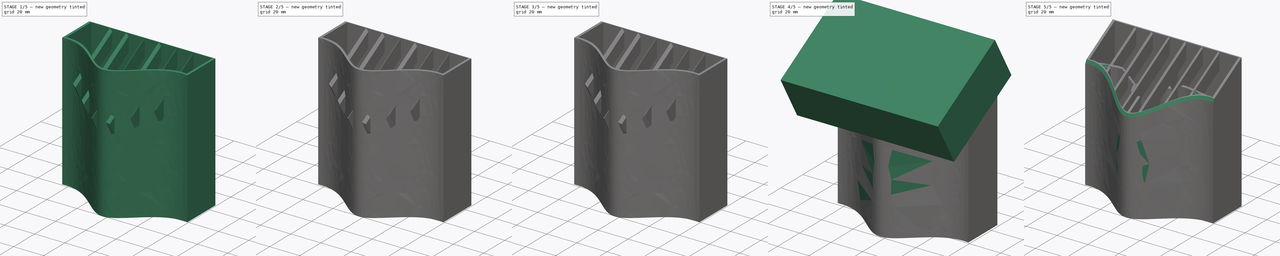
[diagram: build sequence overview — one tinted view per stage of 5, left to right]
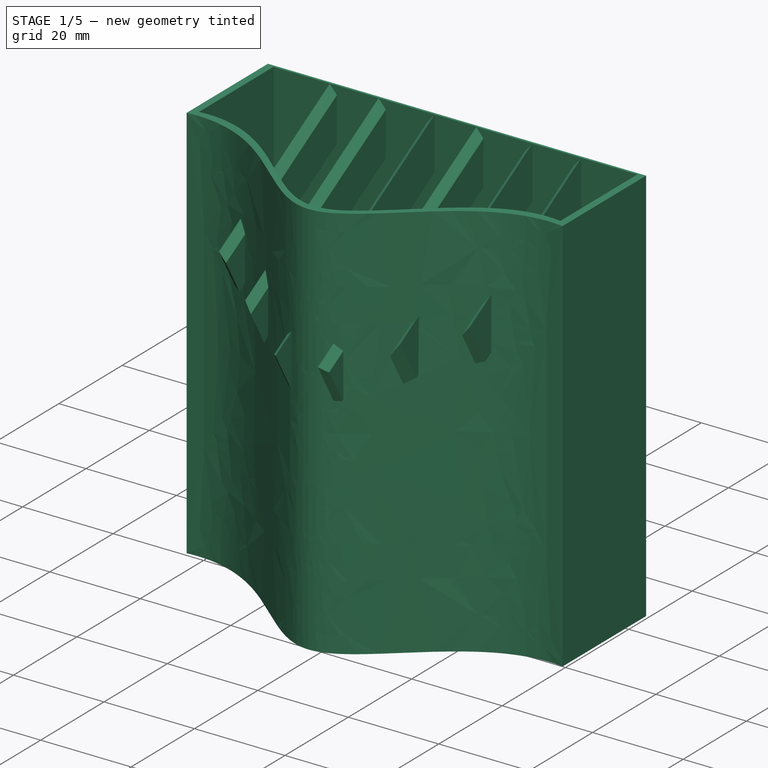
[diagram: stage 1 of 5 — iso view after this stage's code; geometry added in this stage tinted green]
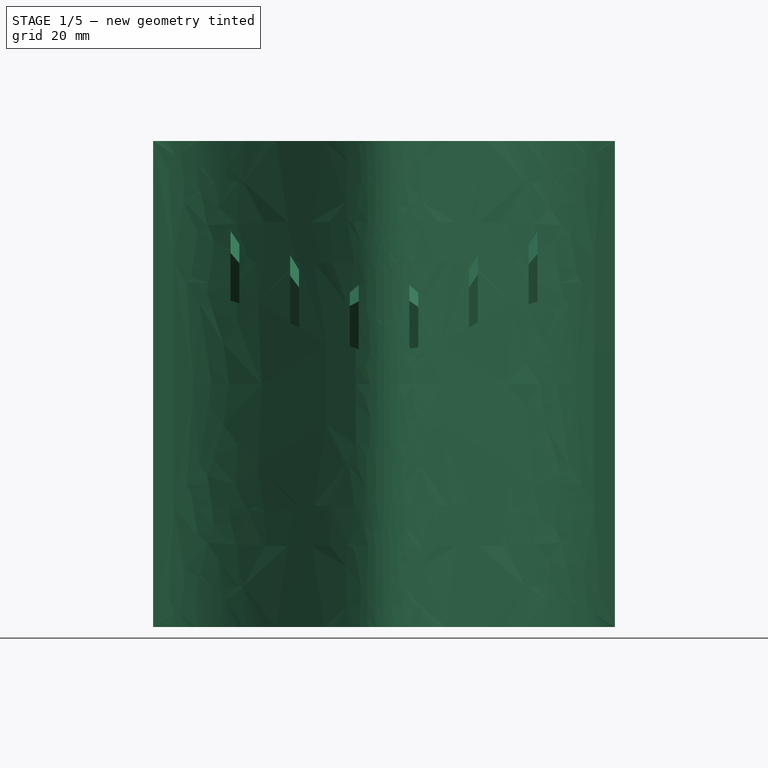
[diagram: stage 1 of 5 — front view after this stage's code; geometry added in this stage tinted green]
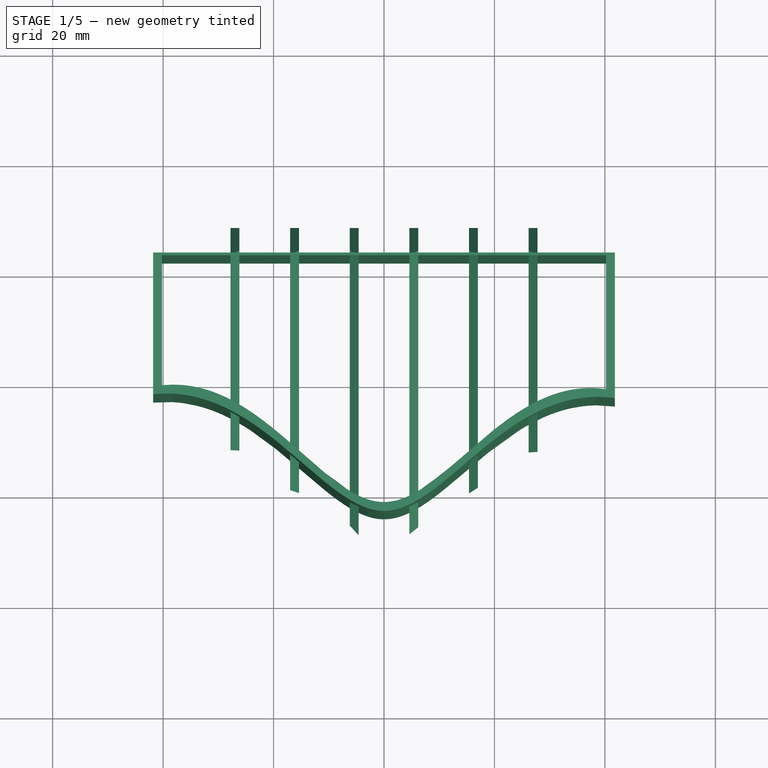
[diagram: stage 1 of 5 — top view after this stage's code; geometry added in this stage tinted green]
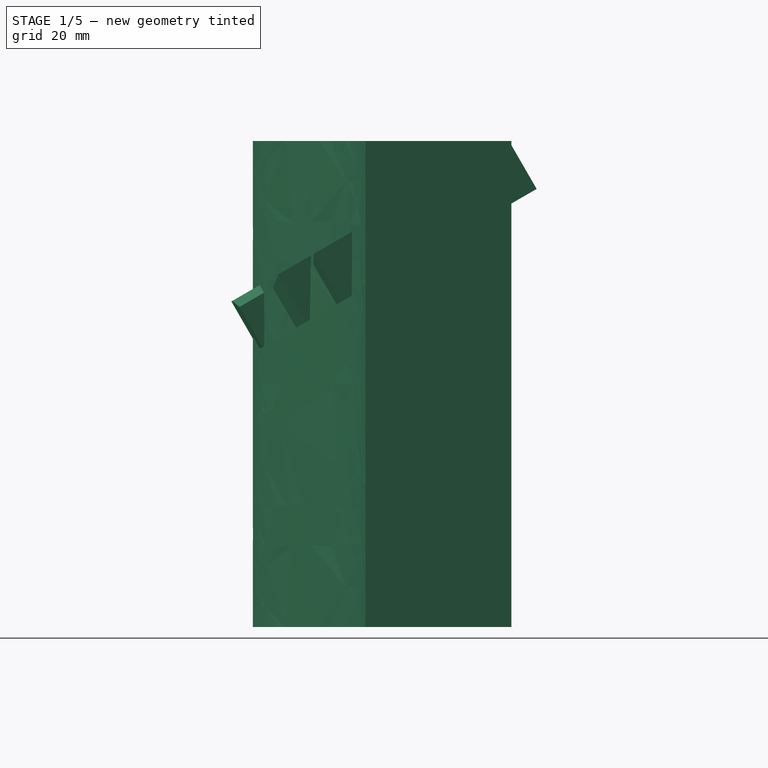
[diagram: stage 1 of 5 — right view after this stage's code; geometry added in this stage tinted green]
FCSTD DOCUMENT  (FreeCAD 0.19R0.19.2)
Label: boatMoterHolder047
License: All rights reserved
LicenseURL: http://en.wikipedia.org/wiki/All_rights_reserved
objects: Part::Chamfer×10, Sketcher::SketchObject×5, Part::Extrusion×5, Part::Cut×2, Part::Box×1, Part::MultiFuse×1
note: 24 computed .brp shape members not serialized (recipe doc carries the construction recipe); baked Part::Feature solids carry a one-line shape summary decoded from their .brp

FEATURE [Sketcher::SketchObject] Sketch002
  FullyConstrained = true
  sketch-geometry (26):
    g0: LineSegment StartX=41.8 StartY=22.9 StartZ=0 EndX=-41.8 EndY=22.9 EndZ=0
    g1: LineSegment StartX=41.8 StartY=22.9 StartZ=0 EndX=41.8 EndY=-1.87726 EndZ=0
    g2: LineSegment StartX=-41.8 StartY=22.9 StartZ=0 EndX=-41.8 EndY=-1.16355 EndZ=0
    g3-g7: Circle x5 (B-spline internal-alignment scaffolding for g8; pole/knot coordinates omitted)
    g8: BSplineCurve PolesCount=5 KnotsCount=3 Degree=3 IsPeriodic=0
    g9: GeomPoint X=-40.2 Y=-1.16355 Z=0
    g10: GeomPoint X=0 Y=-22.3 Z=0
    g11: GeomPoint X=40.2 Y=-1.87726 Z=0
    g12: LineSegment StartX=-41.8 StartY=-1.16355 StartZ=0 EndX=-41.8 EndY=-2.76355 EndZ=0
    g13: LineSegment StartX=41.8 StartY=-1.87726 StartZ=0 EndX=41.8 EndY=-3.47726 EndZ=0
    g14-g18: Circle x5 (B-spline internal-alignment scaffolding for g19; pole/knot coordinates omitted)
    g19: BSplineCurve PolesCount=5 KnotsCount=3 Degree=3 IsPeriodic=0
    g20: GeomPoint X=-41.8 Y=-2.76355 Z=0
    g21: GeomPoint X=0 Y=-23.9 Z=0
    g22: GeomPoint X=41.8 Y=-3.47726 Z=0
    g23: LineSegment StartX=-40.2 StartY=-1.16355 StartZ=0 EndX=-40.2 EndY=22.4 EndZ=0
    g24: LineSegment StartX=40.2 StartY=-1.87726 StartZ=0 EndX=40.2 EndY=22.4 EndZ=0
    g25: LineSegment StartX=-40.2 StartY=22.4 StartZ=0 EndX=40.2 EndY=22.4 EndZ=0
  constraints (46):
    c: Horizontal(g0)
    c: Block(g0)
    c: Coincident(g1,g0)
    c: Vertical(g1)
    c: Coincident(g2,g0)
    c: Vertical(g2)
    c: Weight(g3) = 1
    c: Equal(g3, g4-g7) x4
    c: InternalAlignment(g3-g7 -> g8) x5
    c: InternalAlignment(g9,g8)
    c: InternalAlignment(g10,g8)
    c: InternalAlignment(g11,g8)
    c: Coincident(g12,g2)
    c: Vertical(g12)
    c: Distance(g12) = 1.6
    c: PointOnObject(g16,g-2)
    c: Coincident(g13,g1)
    c: Vertical(g13)
    c: Distance(g13) = 1.6
    c: Coincident(g19,g12)
    c: Weight(g14) = 1
    c: Equal(g14, g15-g18) x4
    c: Coincident(g19,g13)
    c: InternalAlignment(g14-g18 -> g19) x5
    c: InternalAlignment(g20,g19)
    c: InternalAlignment(g21,g19)
    c: InternalAlignment(g22,g19)
    c: Block(g14)
    c: Block(g3)
    c: Block(g4)
    c: Block(g15)
    c: Block(g5)
    c: Block(g16)
    c: Block(g17)
    c: Block(g6)
    c: Block(g7)
    c: Block(g18)
    c: Coincident(g23,g8)
    c: Vertical(g23)
    c: Coincident(g24,g8)
    c: Vertical(g24)
    c: Block(g23)
    c: Block(g24)
    c: Coincident(g25,g23)
    c: Coincident(g25,g24)
    c: Horizontal(g25)
FEATURE [Part::Extrusion] Extrude002
  Base = -> Sketch002
  Dir = (0,0,1)
  DirMode = 2
  FaceMakerClass = Part::FaceMakerBullseye
  LengthFwd = 88
  LengthRev = 0
  Placement = pos=(0,0,-48) rot=(0,0,1;0rad)
  Solid = true
  Symmetric = false
FEATURE [Sketcher::SketchObject] Sketch003
  FullyConstrained = true
  sketch-geometry (36):
    g0: LineSegment StartX=-27.8 StartY=22.4 StartZ=0 EndX=-27.8 EndY=-4.33627 EndZ=0
    g1: LineSegment StartX=-26.2 StartY=22.4 StartZ=0 EndX=-26.2 EndY=-5.30557 EndZ=0
    g2: LineSegment StartX=-17 StartY=22.4 StartZ=0 EndX=-17 EndY=-12.599 EndZ=0
    g3: LineSegment StartX=-15.4 StartY=22.4 StartZ=0 EndX=-15.4 EndY=-14.0991 EndZ=0
    g4: LineSegment StartX=-6.2 StartY=22.4 StartZ=0 EndX=-6.2 EndY=-20.8499 EndZ=0
    g5: LineSegment StartX=-4.6 StartY=22.4 StartZ=0 EndX=-4.6 EndY=-21.9409 EndZ=0
    g6: LineSegment StartX=4.6 StartY=22.4 StartZ=0 EndX=4.6 EndY=-21.7364 EndZ=0
    g7: LineSegment StartX=6.2 StartY=22.4 StartZ=0 EndX=6.2 EndY=-21.1908 EndZ=0
    g8: LineSegment StartX=15.4 StartY=22.4 StartZ=0 EndX=15.4 EndY=-14.1673 EndZ=0
    g9: LineSegment StartX=17 StartY=22.4 StartZ=0 EndX=17 EndY=-12.1216 EndZ=0
    g10: LineSegment StartX=26.2 StartY=22.4 StartZ=0 EndX=26.2 EndY=-5.71183 EndZ=0
    g11: LineSegment StartX=27.8 StartY=22.4 StartZ=0 EndX=27.8 EndY=-4.68899 EndZ=0
    g12: LineSegment StartX=27.8 StartY=-4.68899 StartZ=0 EndX=26.2 EndY=-5.71183 EndZ=0
    g13: LineSegment StartX=17 StartY=-12.1216 StartZ=0 EndX=15.4 EndY=-14.1673 EndZ=0
    g14: LineSegment StartX=6.2 StartY=-21.1908 StartZ=0 EndX=4.6 EndY=-21.7364 EndZ=0
    g15: LineSegment StartX=-4.6 StartY=-21.9409 StartZ=0 EndX=-6.2 EndY=-20.8499 EndZ=0
    g16: LineSegment StartX=-15.4 StartY=-14.0991 StartZ=0 EndX=-17 EndY=-12.599 EndZ=0
    g17: LineSegment StartX=-26.2 StartY=-5.30557 StartZ=0 EndX=-27.8 EndY=-4.33627 EndZ=0
    g18: LineSegment StartX=-27.8 StartY=36.1249 StartZ=0 EndX=-26.2 EndY=36.1249 EndZ=0
    g19: LineSegment StartX=-27.8 StartY=22.4 StartZ=0 EndX=-27.8 EndY=36.1249 EndZ=0
    g20: LineSegment StartX=-26.2 StartY=22.4 StartZ=0 EndX=-26.2 EndY=36.1249 EndZ=0
    g21: LineSegment StartX=-17 StartY=22.4 StartZ=0 EndX=-17 EndY=36.1249 EndZ=0
    g22: LineSegment StartX=-15.4 StartY=22.4 StartZ=0 EndX=-15.4 EndY=36.1249 EndZ=0
    g23: LineSegment StartX=-6.2 StartY=22.4 StartZ=0 EndX=-6.2 EndY=36.1249 EndZ=0
    g24: LineSegment StartX=-4.6 StartY=22.4 StartZ=0 EndX=-4.6 EndY=36.1249 EndZ=0
    g25: LineSegment StartX=4.6 StartY=22.4 StartZ=0 EndX=4.6 EndY=36.1249 EndZ=0
    g26: LineSegment StartX=6.2 StartY=22.4 StartZ=0 EndX=6.2 EndY=36.1249 EndZ=0
    g27: LineSegment StartX=15.4 StartY=22.4 StartZ=0 EndX=15.4 EndY=36.1249 EndZ=0
    g28: LineSegment StartX=17 StartY=22.4 StartZ=0 EndX=17 EndY=36.1249 EndZ=0
    g29: LineSegment StartX=26.2 StartY=22.4 StartZ=0 EndX=26.2 EndY=36.1249 EndZ=0
    g30: LineSegment StartX=27.8 StartY=22.4 StartZ=0 EndX=27.8 EndY=36.1249 EndZ=0
    g31: LineSegment StartX=26.2 StartY=36.1249 StartZ=0 EndX=27.8 EndY=36.1249 EndZ=0
    g32: LineSegment StartX=15.4 StartY=36.1249 StartZ=0 EndX=17 EndY=36.1249 EndZ=0
    g33: LineSegment StartX=4.6 StartY=36.1249 StartZ=0 EndX=6.2 EndY=36.1249 EndZ=0
    g34: LineSegment StartX=-6.2 StartY=36.1249 StartZ=0 EndX=-4.6 EndY=36.1249 EndZ=0
    g35: LineSegment StartX=-17 StartY=36.1249 StartZ=0 EndX=-15.4 EndY=36.1249 EndZ=0
  constraints (78):
    c: Vertical(g0)
    c: Vertical(g1)
    c: Vertical(g2)
    c: Vertical(g3)
    c: Vertical(g4)
    c: Vertical(g5)
    c: Vertical(g6)
    c: Vertical(g7)
    c: Vertical(g8)
    c: Vertical(g9)
    c: Vertical(g10)
    c: Vertical(g11)
    c: Coincident(g12,g11)
    c: Coincident(g12,g10)
    c: Coincident(g13,g9)
    c: Coincident(g13,g8)
    c: Coincident(g14,g7)
    c: Coincident(g14,g6)
    c: Coincident(g15,g5)
    c: Coincident(g15,g4)
    c: Coincident(g16,g3)
    c: Coincident(g16,g2)
    c: Coincident(g17,g1)
    c: Coincident(g17,g0)
    c: Horizontal(g18)
    c: Vertical(g19)
    c: Vertical(g20)
    c: Vertical(g21)
    c: Vertical(g22)
    c: Vertical(g23)
    c: Vertical(g24)
    c: Vertical(g25)
    c: Vertical(g26)
    c: Vertical(g27)
    c: Vertical(g28)
    c: Vertical(g29)
    c: Vertical(g30)
    c: Coincident(g31,g30)
    c: Coincident(g32,g28)
    c: Coincident(g31,g29)
    c: Tangent(g18,g31)
    c: Coincident(g33,g26)
    c: Coincident(g32,g27)
    c: Tangent(g18,g32)
    c: Coincident(g34,g24)
    c: Coincident(g33,g25)
    c: Tangent(g18,g33)
    c: Coincident(g35,g22)
    c: Coincident(g34,g23)
    c: Tangent(g18,g34)
    c: Coincident(g18,g20)
    c: Coincident(g35,g21)
    c: Tangent(g18,g35)
    c: Coincident(g18,g19)
    c: Block(g30)
    c: Block(g10)
    c: Block(g29)
    c: Block(g11)
    c: Block(g9)
    c: Block(g8)
    c: Block(g27)
    c: Block(g28)
    c: Block(g7)
    c: Block(g26)
    c: Block(g25)
    c: Block(g6)
    c: Block(g5)
    c: Block(g4)
    c: Block(g23)
    c: Block(g24)
    c: Block(g3)
    c: Block(g2)
    c: Block(g21)
    c: Block(g22)
    c: Block(g20)
    c: Block(g19)
    c: Block(g0)
    c: Block(g1)
FEATURE [Part::Extrusion] Extrude003
  Base = -> Sketch003
  Dir = (0,0,1)
  DirMode = 2
  FaceMakerClass = Part::FaceMakerBullseye
  LengthFwd = 10
  LengthRev = 0
  Placement = pos=(0,-3.8,13.26) rot=(1,0,0;0.523599rad)
  Solid = true
  Symmetric = false
FEATURE [Part::Chamfer] Chamfer005
  Base = -> Extrude002
  Edges = 3 edges r=1.26: [Edge21,Edge24,Edge29]
FEATURE [Part::Chamfer] Chamfer007
  Base = -> Extrude003
  Edges = 12 edges r=1.59: [Edge4,Edge18,Edge28,Edge31,Edge40,Edge54,Edge64,Edge67,Edge76,Edge90,Edge100,Edge103]
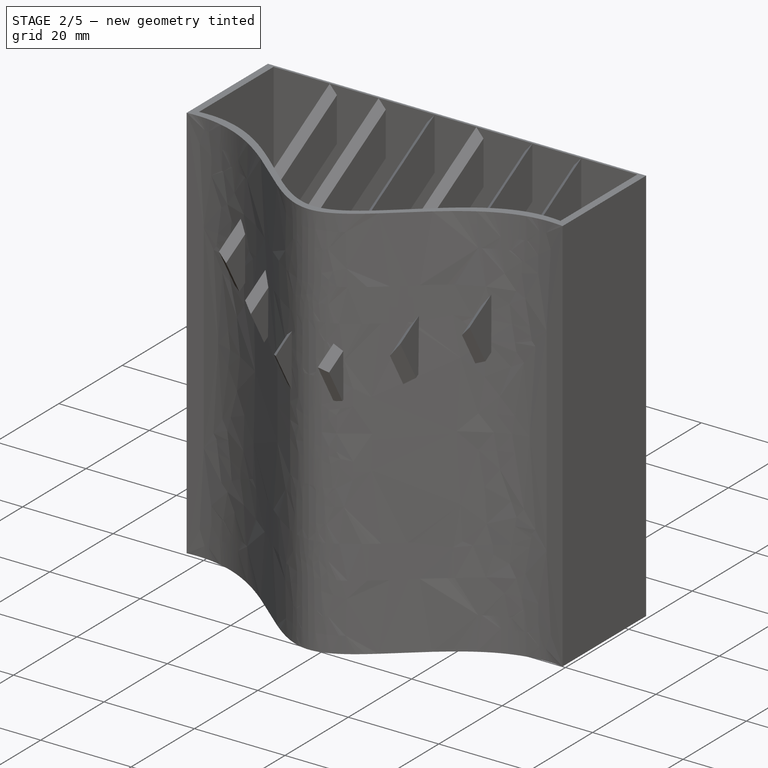
[diagram: stage 2 of 5 — iso view after this stage's code; geometry added in this stage tinted green]
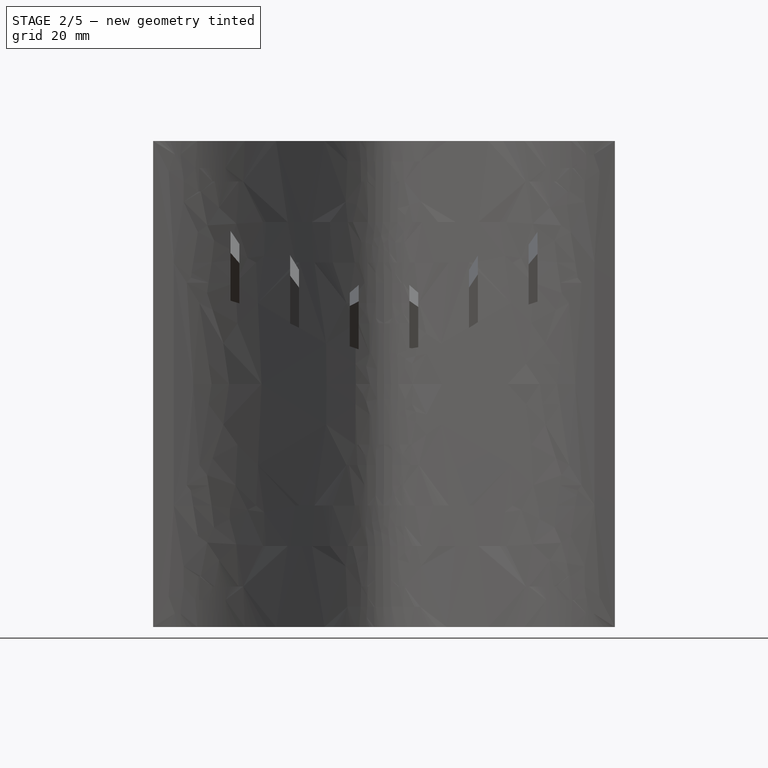
[diagram: stage 2 of 5 — front view after this stage's code; geometry added in this stage tinted green]
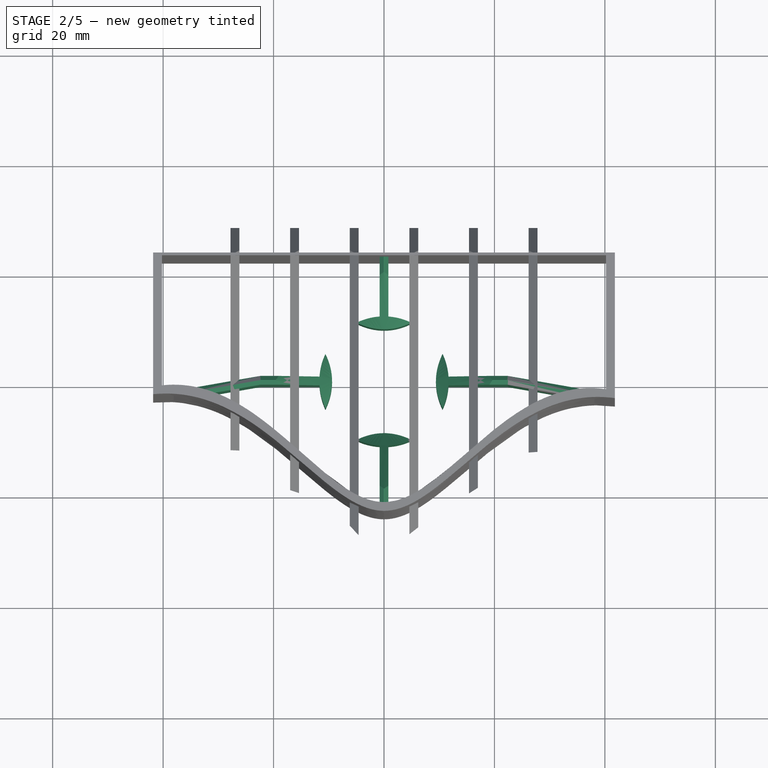
[diagram: stage 2 of 5 — top view after this stage's code; geometry added in this stage tinted green]
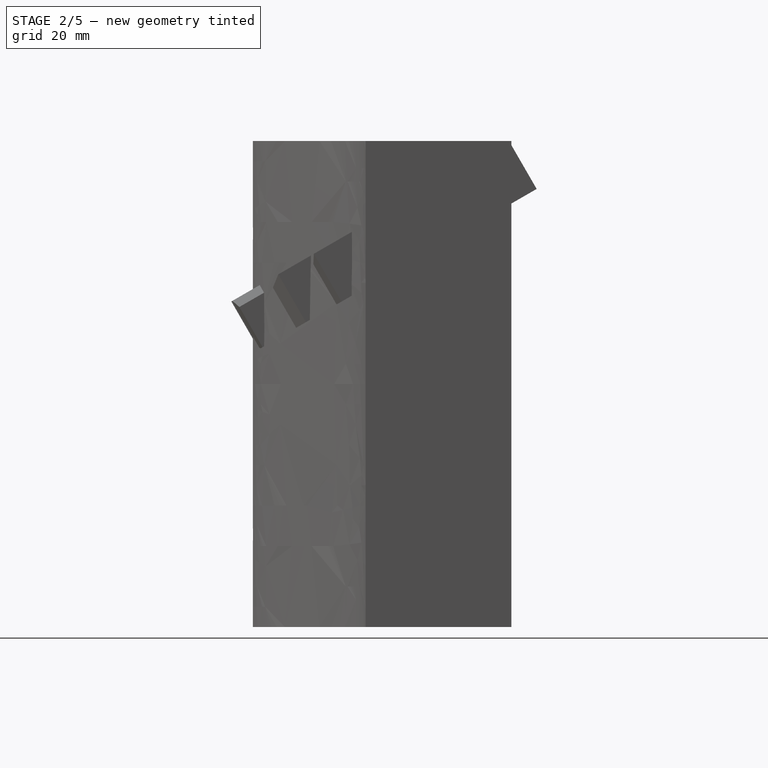
[diagram: stage 2 of 5 — right view after this stage's code; geometry added in this stage tinted green]
FEATURE [Sketcher::SketchObject] Sketch001
  FullyConstrained = true
  sketch-geometry (48):
    g0: ArcOfCircle CenterX=0 CenterY=0 CenterZ=0 NormalX=0 NormalY=0 NormalZ=1 AngleXU=0 Radius=11.7047 StartAngle=1.13417 EndAngle=1.50239
    g1: ArcOfCircle CenterX=0 CenterY=0 CenterZ=0 NormalX=0 NormalY=0 NormalZ=1 AngleXU=0 Radius=11.7047 StartAngle=5.84584 EndAngle=6.21478
    g2: ArcOfCircle CenterX=0 CenterY=0 CenterZ=0 NormalX=0 NormalY=0 NormalZ=1 AngleXU=0 Radius=11.7047 StartAngle=4.27663 EndAngle=4.64399
    g3: ArcOfCircle CenterX=0 CenterY=0 CenterZ=0 NormalX=0 NormalY=0 NormalZ=1 AngleXU=0 Radius=11.7047 StartAngle=2.70497 EndAngle=3.07319
    g4: LineSegment StartX=22.4 StartY=-0.8 StartZ=0 EndX=11.6773 EndY=-0.8 EndZ=0
    g5: LineSegment StartX=22.4 StartY=0.8 StartZ=0 EndX=11.6773 EndY=0.8 EndZ=0
    g6: LineSegment StartX=0.8 StartY=22.4 StartZ=0 EndX=0.8 EndY=11.6773 EndZ=0
    g7: LineSegment StartX=-0.8 StartY=22.4 StartZ=0 EndX=-0.8 EndY=11.6773 EndZ=0
    g8: LineSegment StartX=-22.4 StartY=0.8 StartZ=0 EndX=-11.6773 EndY=0.8 EndZ=0
    g9: LineSegment StartX=-22.4 StartY=-0.8 StartZ=0 EndX=-11.6773 EndY=-0.8 EndZ=0
    g10: ArcOfCircle CenterX=0 CenterY=0 CenterZ=0 NormalX=0 NormalY=0 NormalZ=1 AngleXU=0 Radius=11.7047 StartAngle=3.20999 EndAngle=3.57822
    g11: ArcOfCircle CenterX=0 CenterY=0 CenterZ=0 NormalX=0 NormalY=0 NormalZ=1 AngleXU=0 Radius=11.7047 StartAngle=1.6392 EndAngle=2.00742
    g12: ArcOfCircle CenterX=0 CenterY=0 CenterZ=0 NormalX=0 NormalY=0 NormalZ=1 AngleXU=0 Radius=11.7047 StartAngle=0.0684019 EndAngle=0.436627
    g13: LineSegment StartX=-0.8 StartY=22.4 StartZ=0 EndX=0.8 EndY=22.4 EndZ=0
    g14: LineSegment StartX=0.8 StartY=-22.4 StartZ=0 EndX=0.8 EndY=-11.6773 EndZ=0
    g15: LineSegment StartX=-0.8 StartY=-22.4 StartZ=0 EndX=-0.8 EndY=-11.6773 EndZ=0
    g16: LineSegment StartX=-0.8 StartY=-22.4 StartZ=0 EndX=0.8 EndY=-22.4 EndZ=0
    g17: ArcOfCircle CenterX=0 CenterY=0 CenterZ=0 NormalX=0 NormalY=0 NormalZ=1 AngleXU=0 Radius=11.7047 StartAngle=4.78079 EndAngle=5.14902
    g18: Circle CenterX=-10.6066 CenterY=4.94975 CenterZ=0 NormalX=0 NormalY=0 NormalZ=1 AngleXU=0 Radius=1
    g19: Circle CenterX=-8.2 CenterY=0 CenterZ=0 NormalX=0 NormalY=0 NormalZ=1 AngleXU=0 Radius=1
    g20: Circle CenterX=-10.6066 CenterY=-4.94974 CenterZ=0 NormalX=0 NormalY=0 NormalZ=1 AngleXU=0 Radius=1
    g21: BSplineCurve PolesCount=3 KnotsCount=2 Degree=2 IsPeriodic=0
    g22: GeomPoint X=-10.6066 Y=4.94975 Z=0
    g23: GeomPoint X=-10.6066 Y=-4.94974 Z=0
    g24: Circle CenterX=-4.94974 CenterY=10.6066 CenterZ=0 NormalX=0 NormalY=0 NormalZ=1 AngleXU=0 Radius=1
    g25: Circle CenterX=0 CenterY=8.2 CenterZ=0 NormalX=0 NormalY=0 NormalZ=1 AngleXU=0 Radius=1
    g26: Circle CenterX=4.94975 CenterY=10.6066 CenterZ=0 NormalX=0 NormalY=0 NormalZ=1 AngleXU=0 Radius=1
    g27: BSplineCurve PolesCount=3 KnotsCount=2 Degree=2 IsPeriodic=0
    g28: GeomPoint X=-4.94974 Y=10.6066 Z=0
    g29: GeomPoint X=4.94975 Y=10.6066 Z=0
    g30: Circle CenterX=10.6066 CenterY=4.94975 CenterZ=0 NormalX=0 NormalY=0 NormalZ=1 AngleXU=0 Radius=1
    g31: Circle CenterX=8.2 CenterY=0 CenterZ=0 NormalX=0 NormalY=0 NormalZ=1 AngleXU=0 Radius=1
    g32: Circle CenterX=10.603 CenterY=-4.95737 CenterZ=0 NormalX=0 NormalY=0 NormalZ=1 AngleXU=0 Radius=1
    g33: BSplineCurve PolesCount=3 KnotsCount=2 Degree=2 IsPeriodic=0
    g34: GeomPoint X=10.6066 Y=4.94975 Z=0
    g35: GeomPoint X=10.603 Y=-4.95737 Z=0
    g36: Circle CenterX=4.94975 CenterY=-10.6066 CenterZ=0 NormalX=0 NormalY=0 NormalZ=1 AngleXU=0 Radius=1
    g37: Circle CenterX=0 CenterY=-8.2 CenterZ=0 NormalX=0 NormalY=0 NormalZ=1 AngleXU=0 Radius=1
    g38: Circle CenterX=-4.94053 CenterY=-10.6109 CenterZ=0 NormalX=0 NormalY=0 NormalZ=1 AngleXU=0 Radius=1
    g39: BSplineCurve PolesCount=3 KnotsCount=2 Degree=2 IsPeriodic=0
    g40: GeomPoint X=4.94975 Y=-10.6066 Z=0
    g41: GeomPoint X=-4.94053 Y=-10.6109 Z=0
    g42: LineSegment StartX=36.3923 StartY=-3.26723 StartZ=0 EndX=22.4 EndY=-0.8 EndZ=0
    g43: LineSegment StartX=37.1116 StartY=-1.79405 StartZ=0 EndX=22.4 EndY=0.8 EndZ=0
    g44: LineSegment StartX=37.1116 StartY=-1.79405 StartZ=0 EndX=36.3923 EndY=-3.26723 EndZ=0
    g45: LineSegment StartX=-22.4 StartY=0.8 StartZ=0 EndX=-38.0661 EndY=-1.96236 EndZ=0
    g46: LineSegment StartX=-22.4 StartY=-0.8 StartZ=0 EndX=-33.093 EndY=-2.68547 EndZ=0
    g47: LineSegment StartX=-38.0661 StartY=-1.96236 StartZ=0 EndX=-33.093 EndY=-2.68547 EndZ=0
  constraints (113):
    c: Coincident(g0,g-1)
    c: Coincident(g1,g0)
    c: Coincident(g2,g0)
    c: Coincident(g3,g0)
    c: Block(g1)
    c: Block(g0)
    c: Block(g3)
    c: Block(g2)
    c: Horizontal(g4)
    c: Horizontal(g5)
    c: Vertical(g6)
    c: Vertical(g7)
    c: Horizontal(g8)
    c: Horizontal(g9)
    c: Block(g9)
    c: Block(g8)
    c: Block(g7)
    c: Block(g6)
    c: Block(g5)
    c: Block(g4)
    c: Equal(g3,g10)
    c: Coincident(g3,g8)
    c: Coincident(g10,g9)
    c: Coincident(g3,g10)
    c: Equal(g0,g11)
    c: Coincident(g0,g6)
    c: Coincident(g11,g7)
    c: Coincident(g0,g11)
    c: Equal(g1,g12)
    c: Coincident(g1,g4)
    c: PointOnObject(g12,g5)
    c: Coincident(g1,g12)
    c: Coincident(g13,g7)
    c: Coincident(g13,g6)
    c: Horizontal(g13)
    c: Distance(g13) = 1.6
    c: Vertical(g14)
    c: Vertical(g15)
    c: Block(g14)
    c: Block(g15)
    c: Coincident(g16,g15)
    c: Coincident(g16,g14)
    c: Horizontal(g16)
    c: Equal(g2,g17)
    c: Coincident(g2,g15)
    c: Coincident(g17,g14)
    c: Coincident(g2,g17)
    c: Block(g10)
    c: Block(g11)
    c: Block(g12)
    c: Block(g17)
    c: PointOnObject(g19,g-1)
    c: PointOnObject(g31,g-1)
    c: PointOnObject(g37,g-2)
    c: Coincident(g21,g3)
    c: Weight(g18) = 1
    c: Equal(g18,g19)
    c: Equal(g18,g20)
    c: Coincident(g21,g10)
    c: InternalAlignment(g18,g21)
    c: InternalAlignment(g19,g21)
    c: InternalAlignment(g20,g21)
    c: InternalAlignment(g22,g21)
    c: InternalAlignment(g23,g21)
    c: Coincident(g27,g11)
    c: Weight(g24) = 1
    c: Equal(g24,g25)
    c: Equal(g24,g26)
    c: Coincident(g27,g0)
    c: InternalAlignment(g24,g27)
    c: InternalAlignment(g25,g27)
    c: InternalAlignment(g26,g27)
    c: InternalAlignment(g28,g27)
    c: InternalAlignment(g29,g27)
    c: Coincident(g33,g12)
    c: Weight(g30) = 1
    c: Equal(g30,g31)
    c: Equal(g30,g32)
    c: Coincident(g33,g1)
    c: InternalAlignment(g30,g33)
    c: InternalAlignment(g31,g33)
    c: InternalAlignment(g32,g33)
    c: InternalAlignment(g34,g33)
    c: InternalAlignment(g35,g33)
    c: Coincident(g39,g17)
    c: Weight(g36) = 1
    c: Equal(g36,g37)
    c: Equal(g36,g38)
    c: Coincident(g39,g2)
    c: InternalAlignment(g36,g39)
    c: InternalAlignment(g37,g39)
    c: InternalAlignment(g38,g39)
    c: InternalAlignment(g40,g39)
    c: InternalAlignment(g41,g39)
    c: Block(g27)
    c: Block(g21)
    c: Block(g33)
    c: Block(g39)
    c: Angle(g-1,g42) = 2.96706
    c: Coincident(g42,g4)
    c: Coincident(g43,g5)
    c: Parallel(g43,g42)
    c: Coincident(g44,g43)
    c: Coincident(g44,g42)
    c: Block(g43)
    c: Block(g42)
    c: Angle(g-1,g45) = 3.31613
    c: Coincident(g45,g8)
    c: Block(g45)
    c: Coincident(g46,g9)
    c: Coincident(g47,g45)
    c: Coincident(g47,g46)
    c: Block(g47)
FEATURE [Part::Extrusion] Extrude001
  Base = -> Sketch001
  Dir = (0,0,1)
  DirMode = 2
  FaceMakerClass = Part::FaceMakerBullseye
  LengthFwd = 26
  LengthRev = 0
  Solid = true
  Symmetric = false
FEATURE [Part::Chamfer] Chamfer
  Base = -> Extrude001
  Edges = 4 edges r=10.2: [Edge10,Edge37,Edge58,Edge84]
FEATURE [Part::Chamfer] Chamfer003
  Base = -> Chamfer
  Edges = 12 edges r=0.76: [Edge4,Edge19,Edge20,Edge22,Edge31,Edge46,Edge47,Edge49,Edge58,Edge72,Edge91,Edge94]
FEATURE [Part::Chamfer] Chamfer006
  Base = -> Chamfer005
  Edges = 1 edges r=0.4: [Edge25]
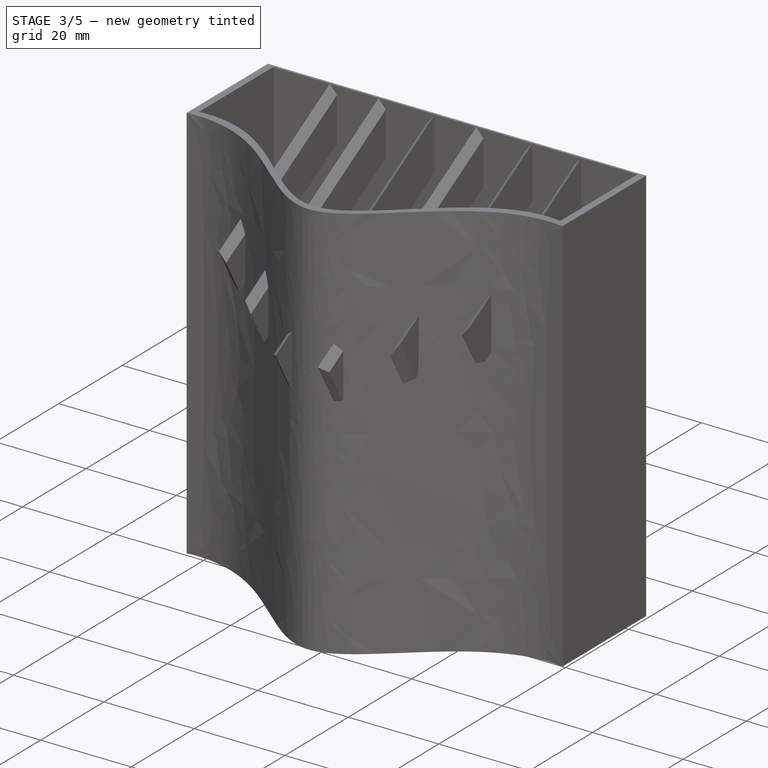
[diagram: stage 3 of 5 — iso view after this stage's code; geometry added in this stage tinted green]
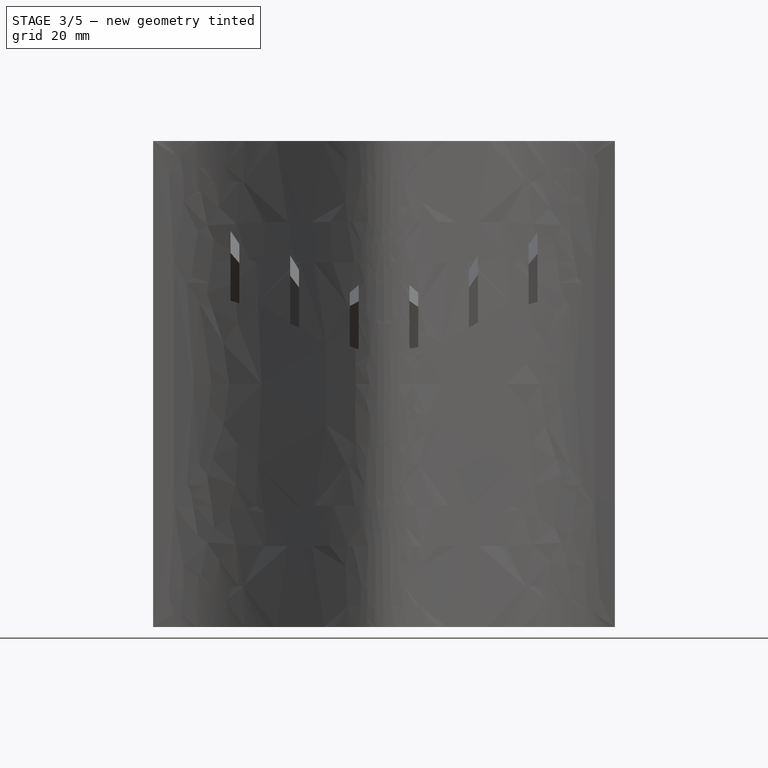
[diagram: stage 3 of 5 — front view after this stage's code; geometry added in this stage tinted green]
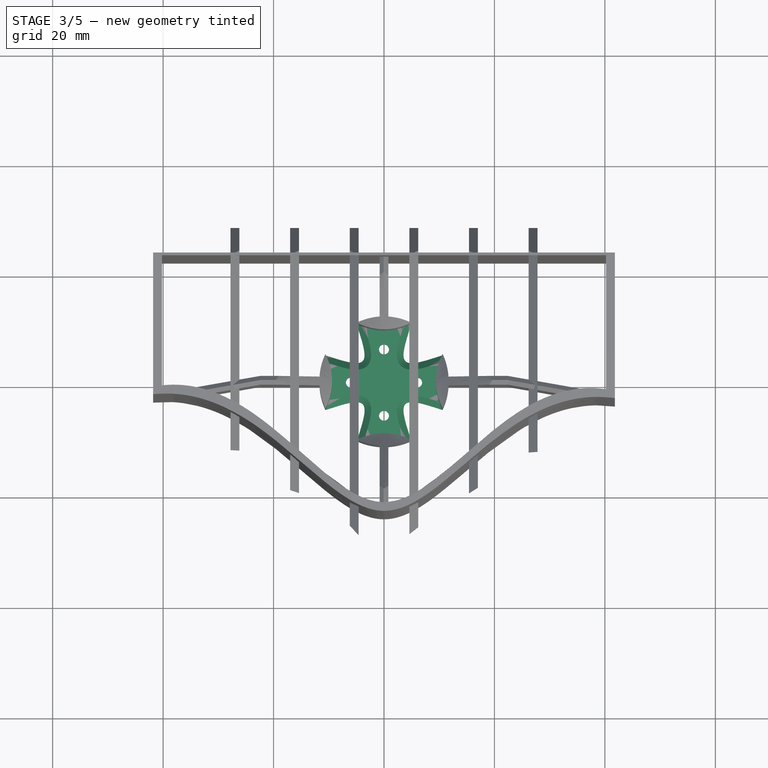
[diagram: stage 3 of 5 — top view after this stage's code; geometry added in this stage tinted green]
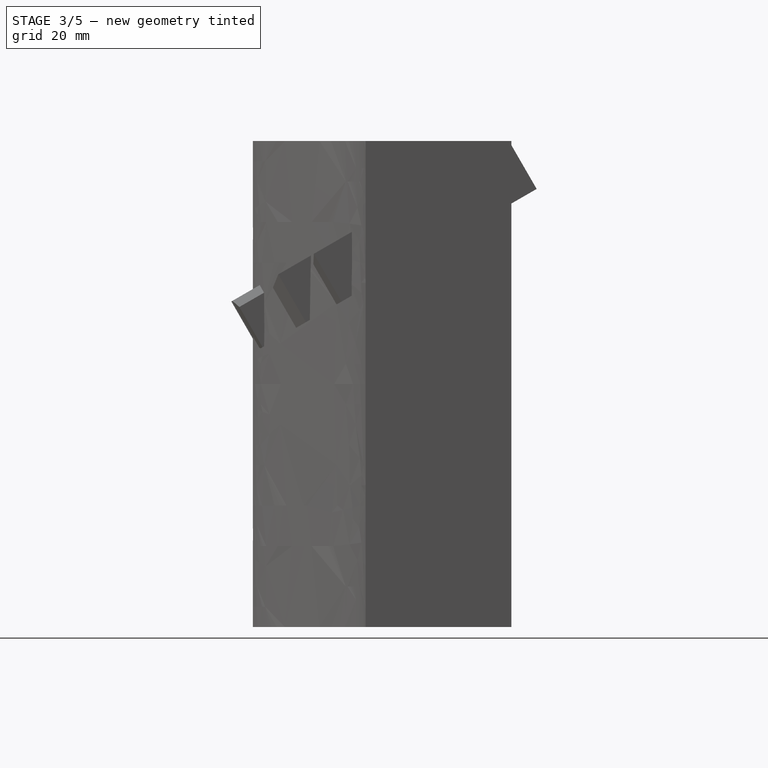
[diagram: stage 3 of 5 — right view after this stage's code; geometry added in this stage tinted green]
FEATURE [Sketcher::SketchObject] Sketch
  FullyConstrained = true
  sketch-geometry (44):
    g0: Circle CenterX=-6 CenterY=0 CenterZ=0 NormalX=0 NormalY=0 NormalZ=1 AngleXU=0 Radius=0.9
    g1: Circle CenterX=0 CenterY=6 CenterZ=0 NormalX=0 NormalY=0 NormalZ=1 AngleXU=0 Radius=0.9
    g2: Circle CenterX=6 CenterY=0 CenterZ=0 NormalX=0 NormalY=0 NormalZ=1 AngleXU=0 Radius=0.9
    g3: Circle CenterX=0 CenterY=-6 CenterZ=0 NormalX=0 NormalY=0 NormalZ=1 AngleXU=0 Radius=0.9
    g4-g8: Circle x5 (B-spline internal-alignment scaffolding for g9; pole/knot coordinates omitted)
    g9: BSplineCurve PolesCount=5 KnotsCount=3 Degree=3 IsPeriodic=0
    g10: GeomPoint X=-4.94974 Y=10.6066 Z=0
    g11: GeomPoint X=-3.88908 Y=3.88909 Z=0
    g12: GeomPoint X=-10.6066 Y=4.94975 Z=0
    g13-g17: Circle x5 (B-spline internal-alignment scaffolding for g18; pole/knot coordinates omitted)
    g18: BSplineCurve PolesCount=5 KnotsCount=3 Degree=3 IsPeriodic=0
    g19: GeomPoint X=-10.6066 Y=-4.94974 Z=0
    g20: GeomPoint X=-3.88212 Y=-3.88197 Z=0
    g21: GeomPoint X=-4.94053 Y=-10.6109 Z=0
    g22-g26: Circle x5 (B-spline internal-alignment scaffolding for g27; pole/knot coordinates omitted)
    g27: BSplineCurve PolesCount=5 KnotsCount=3 Degree=3 IsPeriodic=0
    g28: GeomPoint X=4.94975 Y=-10.6066 Z=0
    g29: GeomPoint X=3.8852 Y=-3.88525 Z=0
    g30: GeomPoint X=10.603 Y=-4.95737 Z=0
    g31-g35: Circle x5 (B-spline internal-alignment scaffolding for g36; pole/knot coordinates omitted)
    g36: BSplineCurve PolesCount=5 KnotsCount=3 Degree=3 IsPeriodic=0
    g37: GeomPoint X=10.6066 Y=4.94975 Z=0
    g38: GeomPoint X=3.8891 Y=3.88908 Z=0
    g39: GeomPoint X=4.94975 Y=10.6066 Z=0
    g40: ArcOfCircle CenterX=0 CenterY=0 CenterZ=0 NormalX=0 NormalY=0 NormalZ=1 AngleXU=0 Radius=11.7047 StartAngle=1.13417 EndAngle=2.00742
    g41: ArcOfCircle CenterX=0 CenterY=0 CenterZ=0 NormalX=0 NormalY=0 NormalZ=1 AngleXU=0 Radius=11.7047 StartAngle=5.84584 EndAngle=6.71981
    g42: ArcOfCircle CenterX=0 CenterY=0 CenterZ=0 NormalX=0 NormalY=0 NormalZ=1 AngleXU=0 Radius=11.7047 StartAngle=4.27663 EndAngle=5.14902
    g43: ArcOfCircle CenterX=0 CenterY=0 CenterZ=0 NormalX=0 NormalY=0 NormalZ=1 AngleXU=0 Radius=11.7047 StartAngle=2.70497 EndAngle=3.57822
  constraints (50):
    c: Block(g1)
    c: Block(g2)
    c: Block(g3)
    c: Block(g0)
    c: Weight(g4) = 1
    c: Equal(g4, g5-g8) x4
    c: InternalAlignment(g4-g8 -> g9) x5
    c: InternalAlignment(g10,g9)
    c: InternalAlignment(g11,g9)
    c: InternalAlignment(g12,g9)
    c: Weight(g13) = 1
    c: Equal(g13, g14-g17) x4
    c: InternalAlignment(g13-g17 -> g18) x5
    c: InternalAlignment(g19,g18)
    c: InternalAlignment(g20,g18)
    c: InternalAlignment(g21,g18)
    c: Weight(g22) = 1
    c: Equal(g22,g24)
    c: Equal(g22,g25)
    c: Equal(g22,g26)
    c: InternalAlignment(g22-g26 -> g27) x5
    c: InternalAlignment(g28,g27)
    c: InternalAlignment(g29,g27)
    c: InternalAlignment(g30,g27)
    c: Weight(g31) = 1
    c: Equal(g31, g32-g35) x4
    c: InternalAlignment(g31-g35 -> g36) x5
    c: InternalAlignment(g37,g36)
    c: InternalAlignment(g38,g36)
    c: InternalAlignment(g39,g36)
    c: Coincident(g40,g-1)
    c: Coincident(g40,g9)
    c: Coincident(g40,g36)
    c: Coincident(g41,g40)
    c: Coincident(g41,g36)
    c: Coincident(g41,g27)
    c: Coincident(g42,g40)
    c: Coincident(g42,g27)
    c: Coincident(g42,g18)
    c: Coincident(g43,g40)
    c: Coincident(g43,g18)
    c: Coincident(g43,g9)
    c: Block(g41)
    c: Block(g40)
    c: Block(g43)
    c: Block(g42)
    c: Block(g36)
    c: Block(g9)
    c: Block(g27)
    c: Block(g18)
FEATURE [Part::Extrusion] Extrude
  Base = -> Sketch
  Dir = (0,0,1)
  DirMode = 2
  FaceMakerClass = Part::FaceMakerBullseye
  LengthFwd = 2
  LengthRev = 0
  Solid = true
  Symmetric = false
FEATURE [Part::Chamfer] Chamfer002
  Base = -> Extrude
  Edges = 4 edges r=1.2: [Edge4,Edge10,Edge16,Edge22]
FEATURE [Part::Chamfer] Chamfer004
  Base = -> Chamfer003
  Edges = 12 edges r=0.76: [Edge5,Edge18,Edge22,Edge23,Edge42,Edge56,Edge59,Edge60,Edge79,Edge97,Edge113,Edge127]
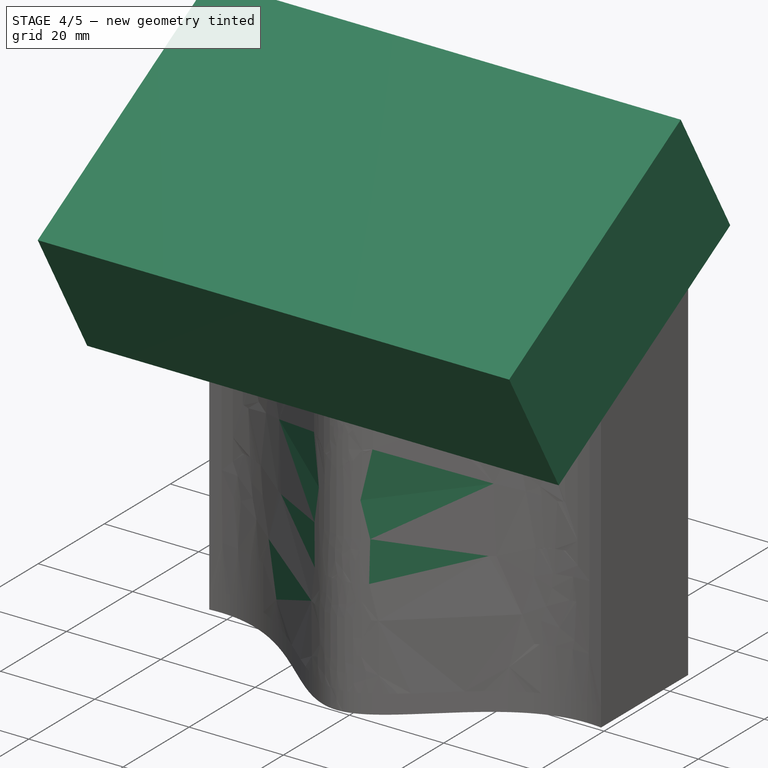
[diagram: stage 4 of 5 — iso view after this stage's code; geometry added in this stage tinted green]
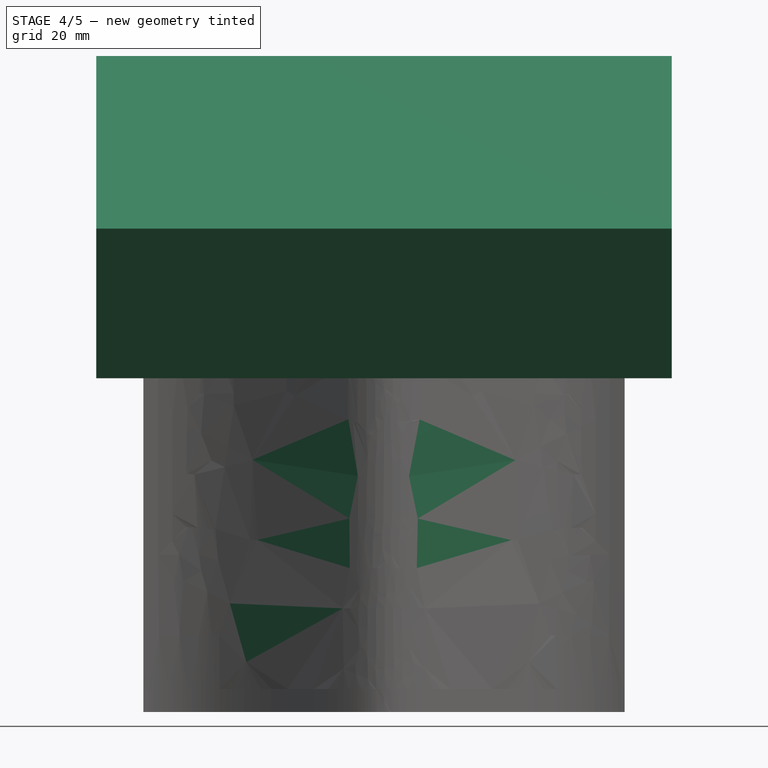
[diagram: stage 4 of 5 — front view after this stage's code; geometry added in this stage tinted green]
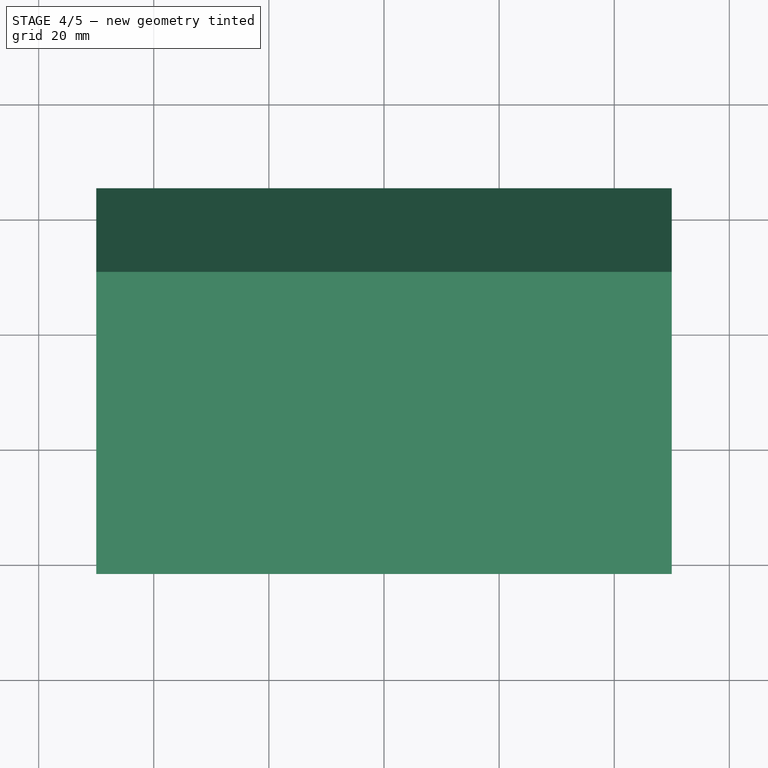
[diagram: stage 4 of 5 — top view after this stage's code; geometry added in this stage tinted green]
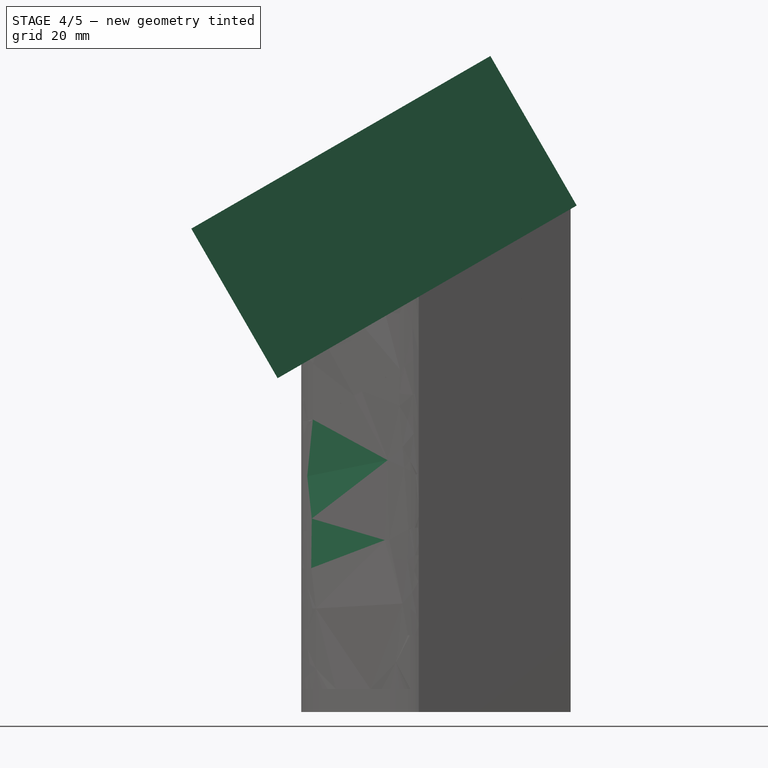
[diagram: stage 4 of 5 — right view after this stage's code; geometry added in this stage tinted green]
FEATURE [Sketcher::SketchObject] Sketch004
  FullyConstrained = true
  Placement = pos=(0,0,-44) rot=(0,0,1;0rad)
  sketch-geometry (16):
    g0: LineSegment StartX=41.8 StartY=22.9 StartZ=0 EndX=-41.8 EndY=22.9 EndZ=0
    g1-g5: Circle x5 (B-spline internal-alignment scaffolding for g6; pole/knot coordinates omitted)
    g6: BSplineCurve PolesCount=5 KnotsCount=3 Degree=3 IsPeriodic=0
    g7: GeomPoint X=-41.8 Y=-2.76355 Z=0
    g8: GeomPoint X=0 Y=-23.9 Z=0
    g9: GeomPoint X=41.8 Y=-3.47726 Z=0
    g10: LineSegment StartX=-41.8 StartY=22.9 StartZ=0 EndX=-41.8 EndY=31.8679 EndZ=0
    g11: LineSegment StartX=-41.8 StartY=31.8679 StartZ=0 EndX=41.8 EndY=31.8679 EndZ=0
    g12: LineSegment StartX=41.8 StartY=22.9 StartZ=0 EndX=41.8 EndY=31.8679 EndZ=0
    g13: LineSegment StartX=41.8 StartY=-3.47726 StartZ=0 EndX=41.8 EndY=-32.2525 EndZ=0
    g14: LineSegment StartX=41.8 StartY=-32.2525 StartZ=0 EndX=-41.8 EndY=-32.2525 EndZ=0
    g15: LineSegment StartX=-41.8 StartY=-2.76355 StartZ=0 EndX=-41.8 EndY=-32.2525 EndZ=0
  constraints (29):
    c: Horizontal(g0)
    c: Block(g0)
    c: PointOnObject(g3,g-2)
    c: Weight(g1) = 1
    c: Equal(g1, g2-g5) x4
    c: InternalAlignment(g1-g5 -> g6) x5
    c: InternalAlignment(g7,g6)
    c: InternalAlignment(g8,g6)
    c: InternalAlignment(g9,g6)
    c: Block(g1)
    c: Block(g2)
    c: Block(g3)
    c: Block(g4)
    c: Block(g5)
    c: Coincident(g10,g0)
    c: Vertical(g10)
    c: Coincident(g11,g10)
    c: Horizontal(g11)
    c: Coincident(g12,g0)
    c: Vertical(g12)
    c: Coincident(g11,g12)
    c: Vertical(g13)
    c: Coincident(g14,g13)
    c: Horizontal(g14)
    c: Vertical(g15)
    c: Coincident(g15,g14)
    c: Block(g13)
    c: Block(g11)
    c: Block(g15)
FEATURE [Part::Extrusion] Extrude004
  Base = -> Sketch004
  Dir = (0,0,1)
  DirMode = 2
  FaceMakerClass = Part::FaceMakerBullseye
  LengthFwd = 90
  LengthRev = 0
  Solid = true
  Symmetric = false
FEATURE [Part::Box] Box  label="Cube"
  AttacherType = Attacher::AttachEngine3D
  Height = 30
  Length = 100
  Placement = pos=(-50,-28,10) rot=(1,0,0;0.523599rad)
  Width = 60
FEATURE [Part::MultiFuse] Fusion  label="main"
  Shapes = -> [Chamfer004,Chamfer006,Chamfer007,Chamfer002]
FEATURE [Part::Cut] Cut
  Base = -> Fusion
  Tool = -> Extrude004
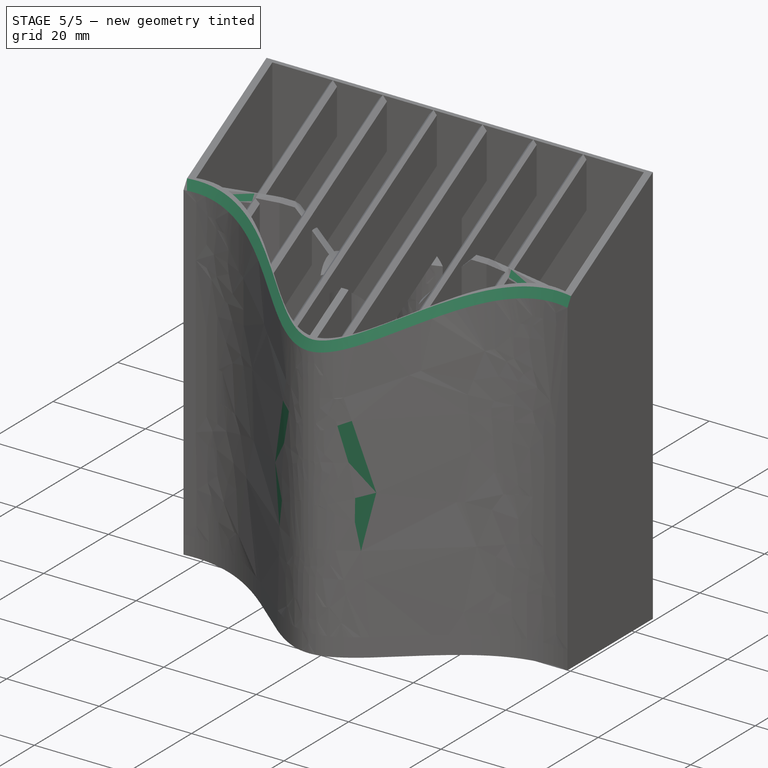
[diagram: stage 5 of 5 — iso view after this stage's code; geometry added in this stage tinted green]
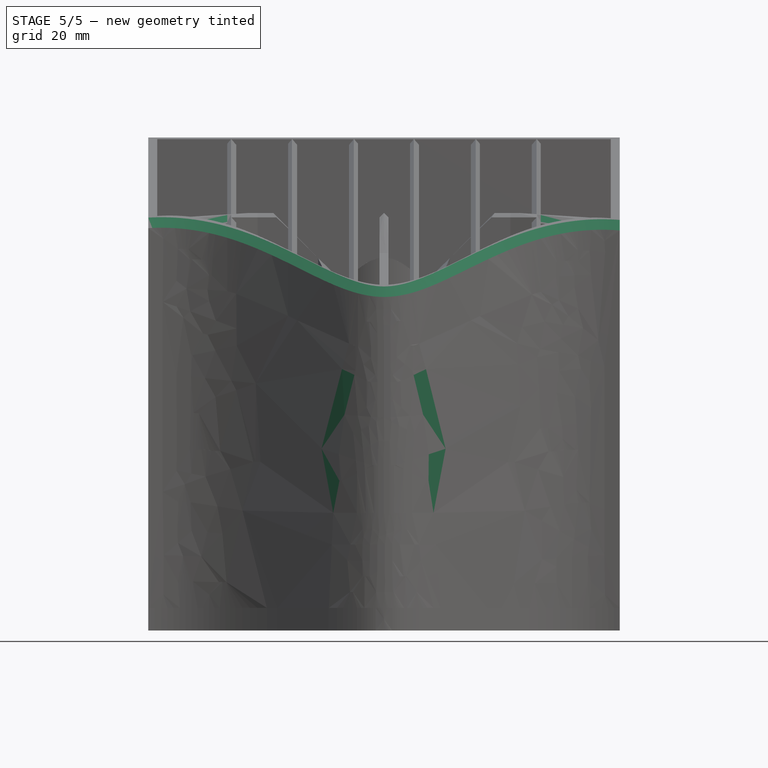
[diagram: stage 5 of 5 — front view after this stage's code; geometry added in this stage tinted green]
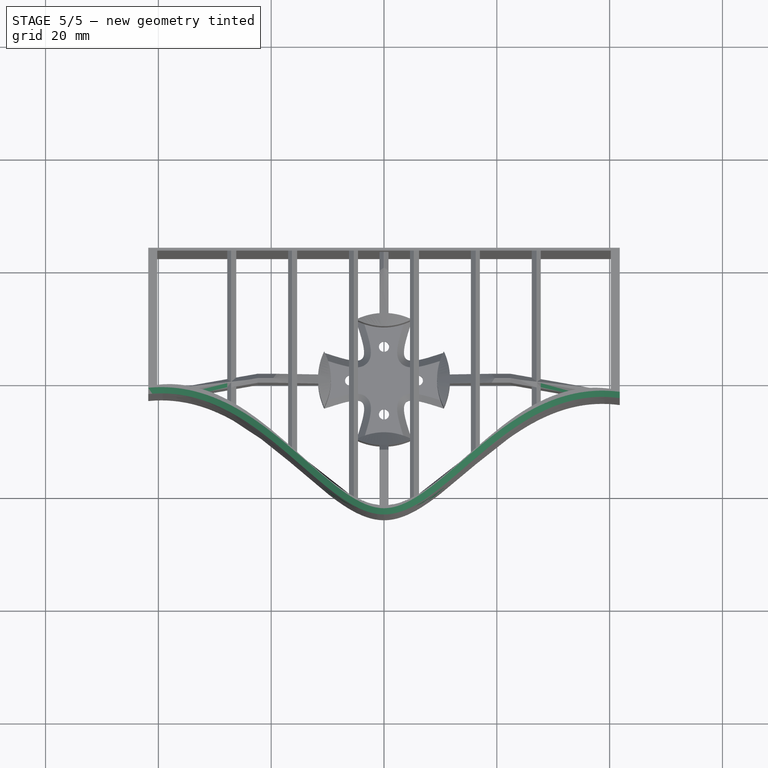
[diagram: stage 5 of 5 — top view after this stage's code; geometry added in this stage tinted green]
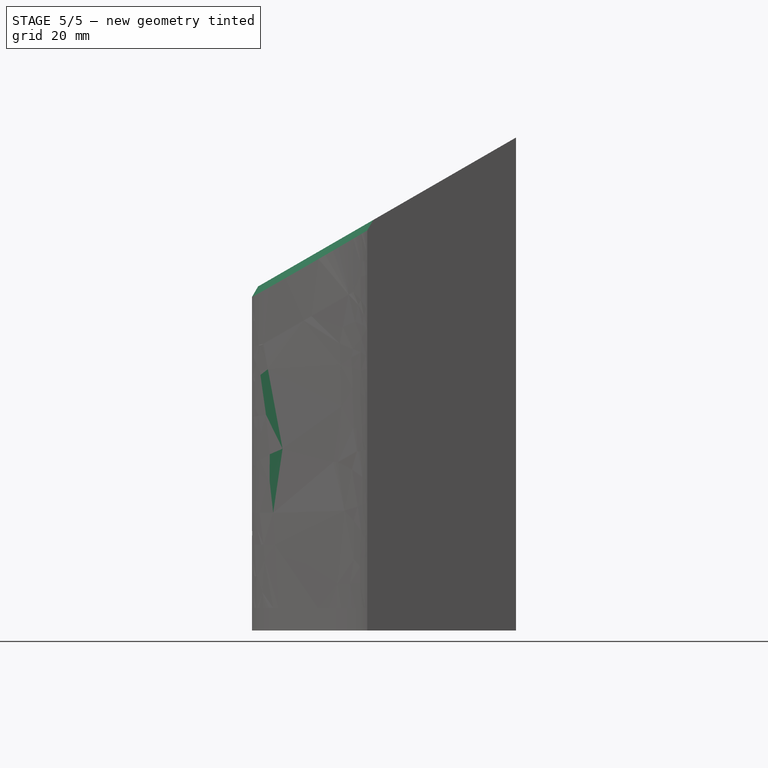
[diagram: stage 5 of 5 — right view after this stage's code; geometry added in this stage tinted green]
FEATURE [Part::Cut] Cut001
  Base = -> Cut
  Tool = -> Box
FEATURE [Part::Chamfer] Chamfer008
  Base = -> Cut001
  Edges = 13 edges r=1.24: [Edge131,Edge132,Edge133,Edge134,Edge135,Edge136,Edge137,Edge138,Edge139,Edge140,Edge141,Edge142,Edge143]
FEATURE [Part::Chamfer] Chamfer009
  Base = -> Chamfer008
  Edges = 2 edges r=1: [Edge19,Edge22]
FEATURE [Part::Chamfer] Chamfer010
  Base = -> Chamfer009
  Edges = 16 edges r=0.7: [Edge1,Edge2,Edge25,Edge26,Edge30,Edge40,Edge47,Edge48,Edge50,Edge51,Edge71,Edge72,Edge76,Edge77,Edge84,Edge85]
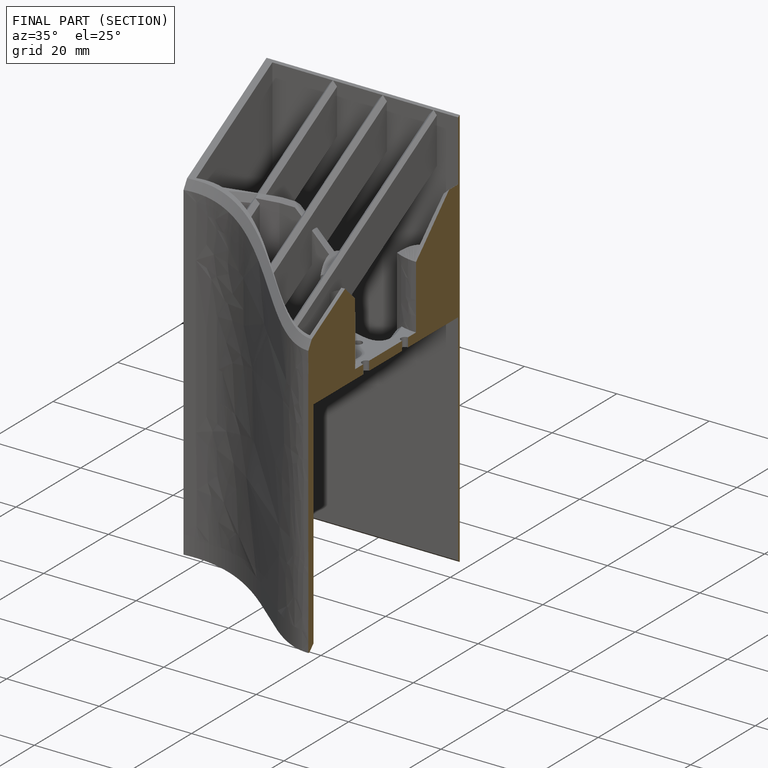
[diagram: finished part — half-section view (interior)]
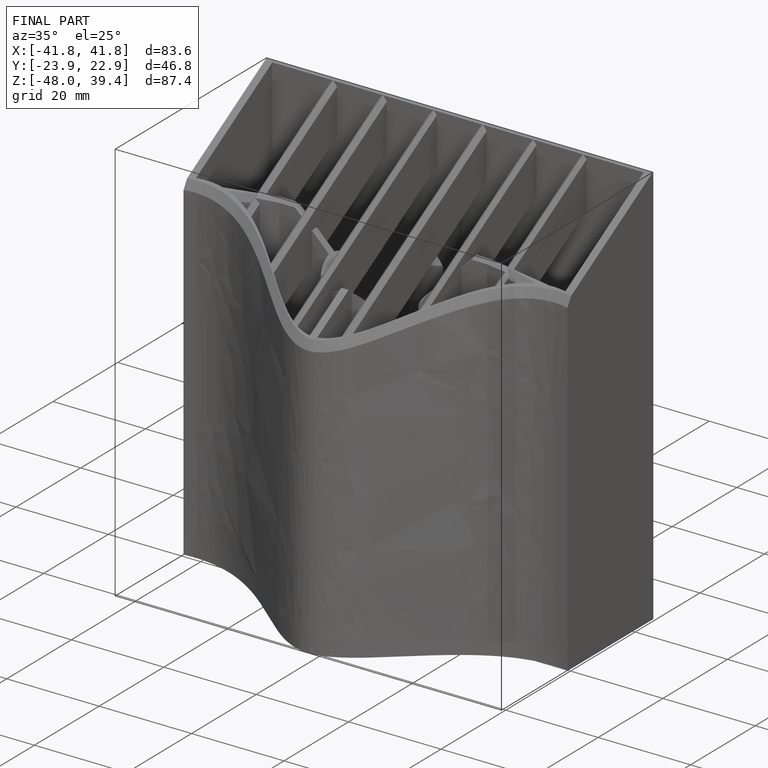
[diagram: finished part — iso view with bounding-box wireframe]
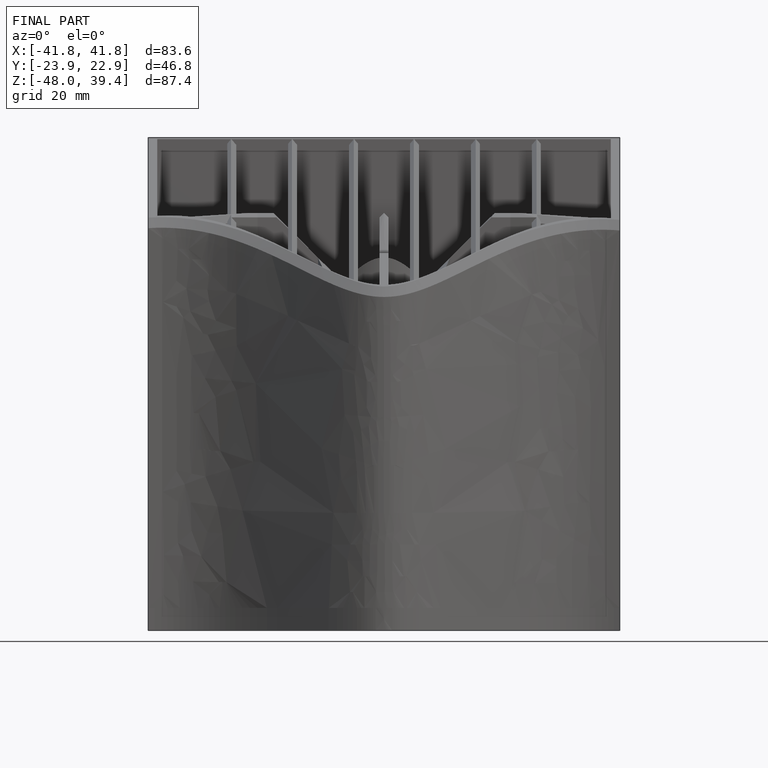
[diagram: finished part — front view with bounding-box wireframe]
